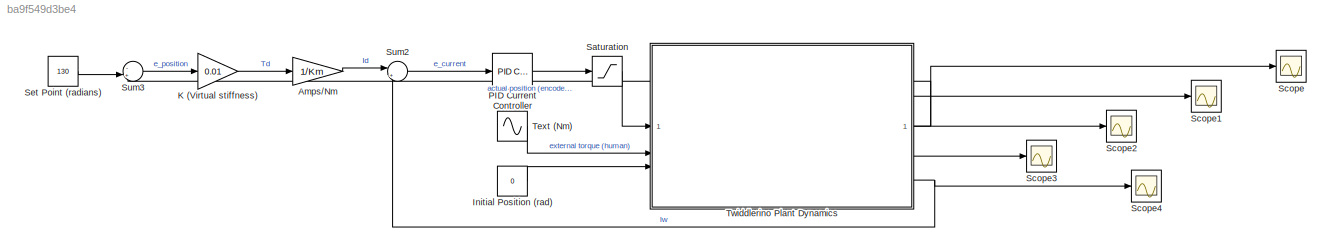
MODEL slx_ba9f549d3be4
KIND model
CONFIG AbsTol = auto
CONFIG EnableMultiTasking = off
CONFIG FixedStep = 1e-3
CONFIG InitFcn = %%%%%%%%%%%%%%%%%%%%%%%%%%%%%%%%%%%%%%%%%%%%%%%%%\n%motor parameters\n%we dont know these yet\nJ = 1e-6; %intertia [kg * m^2]\nBm = 1e-6; %kinetic friction [N * m * s]\n\n%from motor datasheet\nKm = 0.011; %motor constant (back emf constant = torque constant)\nRw = 1.17; %motor electric resistance in ohms\nLw = 0.58E-3; %motor inductance in ohms
CONFIG MaxStep = auto
CONFIG MinStep = auto
CONFIG RelTol = 1e-3
CONFIG SampleTimeConstraint = Unconstrained
CONFIG SolverName = VariableStepAuto
CONFIG StartTime = 0.0
CONFIG StopTime = 3
BLOCK [Gain] Amps//Nm
  Gain = 1/Km
BLOCK [Constant] Initial Position (rad)
  Value = 0
BLOCK [Gain] K (Virtual stiffness)
  Gain = 0.01
BLOCK [Reference] PID Current Controller  REF=slpidlib/PID Controller
  LibrarySourceBlock = simulink/Continuous/PID Controller
  SourceBlock = slpidlib/PID Controller
  SourceType = PID 1dof
BLOCK [Saturate] Saturation
  LinearizeAsGain = off
  LowerLimit = -12
  UpperLimit = 12
BLOCK [Scope] Scope
  Floating = off
  NumInputPorts = 1
  ScopeSpecificationString = Simulink.scopes.TimeScopeBlockCfg('CurrentConfiguration', extmgr.ConfigurationSet(extmgr.Configuration('Core','General UI',true),extmgr.Configuration('Core','Source UI',true),extmgr.Configuration('Sources','WiredSimulink',true),extmgr.Configuration('Visuals','Time Domain',true,'SerializedDisplays',{struct('MinYLimReal','-16.5146','MaxYLimReal','148.63139','YLabelReal','','MinYLimMag','0.00000','Ma...<+1395ch>
BLOCK [Scope] Scope1
  Floating = off
  NumInputPorts = 1
  ScopeSpecificationString = Simulink.scopes.TimeScopeBlockCfg('CurrentConfiguration', extmgr.ConfigurationSet(extmgr.Configuration('Core','General UI',true),extmgr.Configuration('Core','Source UI',true),extmgr.Configuration('Sources','WiredSimulink',true,'DataLoggingVariableName','ScopeData1'),extmgr.Configuration('Visuals','Time Domain',true,'SerializedDisplays',{struct('MinYLimReal','-136.20544','MaxYLimReal','1216.4734','...<+1431ch>
BLOCK [Scope] Scope2
  Floating = off
  NumInputPorts = 1
  ScopeSpecificationString = Simulink.scopes.TimeScopeBlockCfg('CurrentConfiguration', extmgr.ConfigurationSet(extmgr.Configuration('Core','General UI',true),extmgr.Configuration('Core','Source UI',true),extmgr.Configuration('Sources','WiredSimulink',true,'DataLoggingVariableName','ScopeData2'),extmgr.Configuration('Visuals','Time Domain',true,'SerializedDisplays',{struct('MinYLimReal','-0.21353','MaxYLimReal','0.14103','YLab...<+1400ch>
BLOCK [Scope] Scope3
  Floating = off
  NumInputPorts = 1
  ScopeSpecificationString = Simulink.scopes.TimeScopeBlockCfg('CurrentConfiguration', extmgr.ConfigurationSet(extmgr.Configuration('Core','General UI',true),extmgr.Configuration('Core','Source UI',true),extmgr.Configuration('Sources','WiredSimulink',true,'DataLoggingVariableName','ScopeData1'),extmgr.Configuration('Visuals','Time Domain',true,'SerializedDisplays',{struct('MinYLimReal','-0.21353','MaxYLimReal','0.14103','YLab...<+1400ch>
BLOCK [Scope] Scope4
  Floating = off
  NumInputPorts = 1
  ScopeSpecificationString = Simulink.scopes.TimeScopeBlockCfg('CurrentConfiguration', extmgr.ConfigurationSet(extmgr.Configuration('Core','General UI',true),extmgr.Configuration('Core','Source UI',true),extmgr.Configuration('Sources','WiredSimulink',true,'DataLoggingVariableName','ScopeData4'),extmgr.Configuration('Visuals','Time Domain',true,'SerializedDisplays',{struct('MinYLimReal','-19.41216','MaxYLimReal','12.82111','YL...<+1436ch>
BLOCK [Constant] Set Point (radians)
  Value = 130
BLOCK [Sum] Sum2
  Inputs = |+-
BLOCK [Sum] Sum3
  Inputs = -+|
BLOCK [Sin] Text (Nm)
  Amplitude = 1e-2
  Frequency = 5
  SampleTime = 1e-3
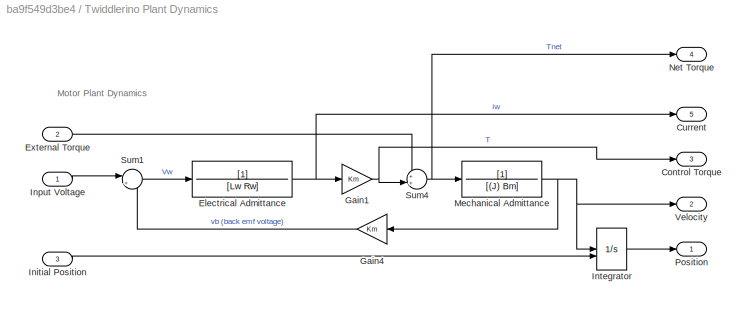
BLOCK [SubSystem] Twiddlerino Plant Dynamics
BLOCK [Outport] Twiddlerino Plant Dynamics/Control Torque
  Port = 3
BLOCK [Outport] Twiddlerino Plant Dynamics/Current
  Port = 5
BLOCK [TransferFcn] Twiddlerino Plant Dynamics/Electrical Admittance
  Denominator = [Lw Rw]
BLOCK [Inport] Twiddlerino Plant Dynamics/External Torque
  NameLocation = top
  Port = 2
BLOCK [Gain] Twiddlerino Plant Dynamics/Gain1
  Gain = Km
BLOCK [Gain] Twiddlerino Plant Dynamics/Gain4
  Gain = Km
BLOCK [Inport] Twiddlerino Plant Dynamics/Initial Position
  Port = 3
BLOCK [Inport] Twiddlerino Plant Dynamics/Input Voltage
BLOCK [Integrator] Twiddlerino Plant Dynamics/Integrator
  InitialConditionSource = external
BLOCK [TransferFcn] Twiddlerino Plant Dynamics/Mechanical Admittance
  Denominator = [(J) Bm]
BLOCK [Outport] Twiddlerino Plant Dynamics/Net Torque
  Port = 4
BLOCK [Outport] Twiddlerino Plant Dynamics/Position
BLOCK [Sum] Twiddlerino Plant Dynamics/Sum1
  Inputs = |+-
BLOCK [Sum] Twiddlerino Plant Dynamics/Sum4
  Inputs = ++|
BLOCK [Outport] Twiddlerino Plant Dynamics/Velocity
  Port = 2
ANNOTATION Twiddlerino Plant Dynamics: Motor Plant Dynamics
LINE Amps//Nm:1 -> Sum2:1
LINE Initial Position (rad):1 -> Twiddlerino Plant Dynamics:3
LINE K (Virtual stiffness):1 -> Amps//Nm:1
LINE PID Current Controller:1 -> Saturation:1
LINE Saturation:1 -> Twiddlerino Plant Dynamics:1
LINE Set Point (radians):1 -> Sum3:2
LINE Sum2:1 -> PID Current Controller:1
LINE Sum3:1 -> K (Virtual stiffness):1
LINE Text (Nm):1 -> Twiddlerino Plant Dynamics:2
NET Twiddlerino Plant Dynamics/Electrical Admittance:1 -> Twiddlerino Plant Dynamics/Current:1, Twiddlerino Plant Dynamics/Gain1:1
LINE Twiddlerino Plant Dynamics/External Torque:1 -> Twiddlerino Plant Dynamics/Sum4:1
NET Twiddlerino Plant Dynamics/Gain1:1 -> Twiddlerino Plant Dynamics/Control Torque:1, Twiddlerino Plant Dynamics/Sum4:2
LINE Twiddlerino Plant Dynamics/Gain4:1 -> Twiddlerino Plant Dynamics/Sum1:2
LINE Twiddlerino Plant Dynamics/Initial Position:1 -> Twiddlerino Plant Dynamics/Integrator:2
LINE Twiddlerino Plant Dynamics/Input Voltage:1 -> Twiddlerino Plant Dynamics/Sum1:1
LINE Twiddlerino Plant Dynamics/Integrator:1 -> Twiddlerino Plant Dynamics/Position:1
NET Twiddlerino Plant Dynamics/Mechanical Admittance:1 -> Twiddlerino Plant Dynamics/Gain4:1, Twiddlerino Plant Dynamics/Integrator:1, Twiddlerino Plant Dynamics/Velocity:1
LINE Twiddlerino Plant Dynamics/Sum1:1 -> Twiddlerino Plant Dynamics/Electrical Admittance:1
NET Twiddlerino Plant Dynamics/Sum4:1 -> Twiddlerino Plant Dynamics/Mechanical Admittance:1, Twiddlerino Plant Dynamics/Net Torque:1
NET Twiddlerino Plant Dynamics:1 -> Scope:1, Sum3:1
LINE Twiddlerino Plant Dynamics:2 -> Scope1:1
LINE Twiddlerino Plant Dynamics:3 -> Scope2:1
LINE Twiddlerino Plant Dynamics:4 -> Scope3:1
NET Twiddlerino Plant Dynamics:5 -> Scope4:1, Sum2:2
note: NET lines group one-source signal fan-out (src -> all destinations, sorted); 1:1 wires keep LINE
